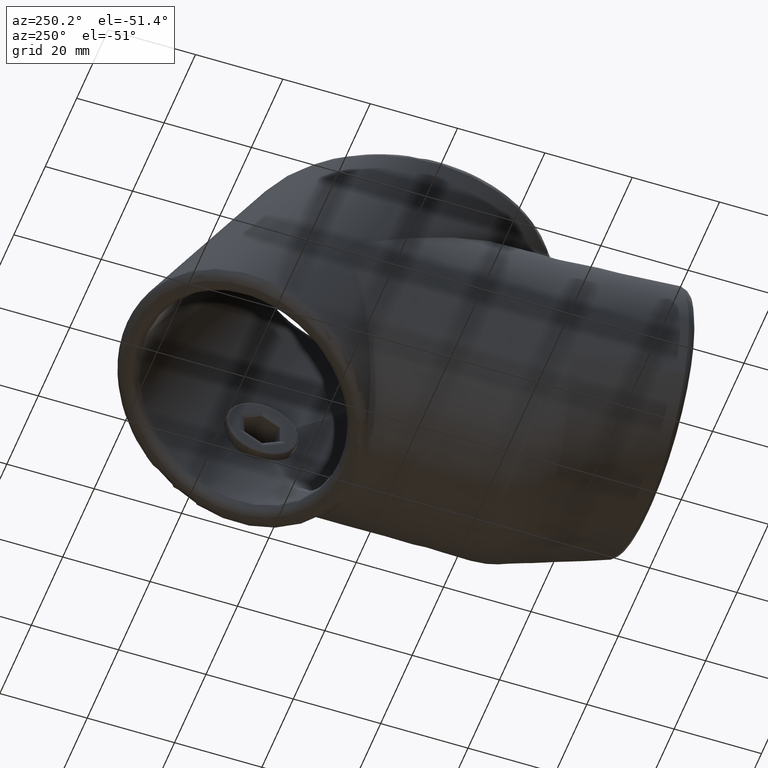
[diagram: clean part render]
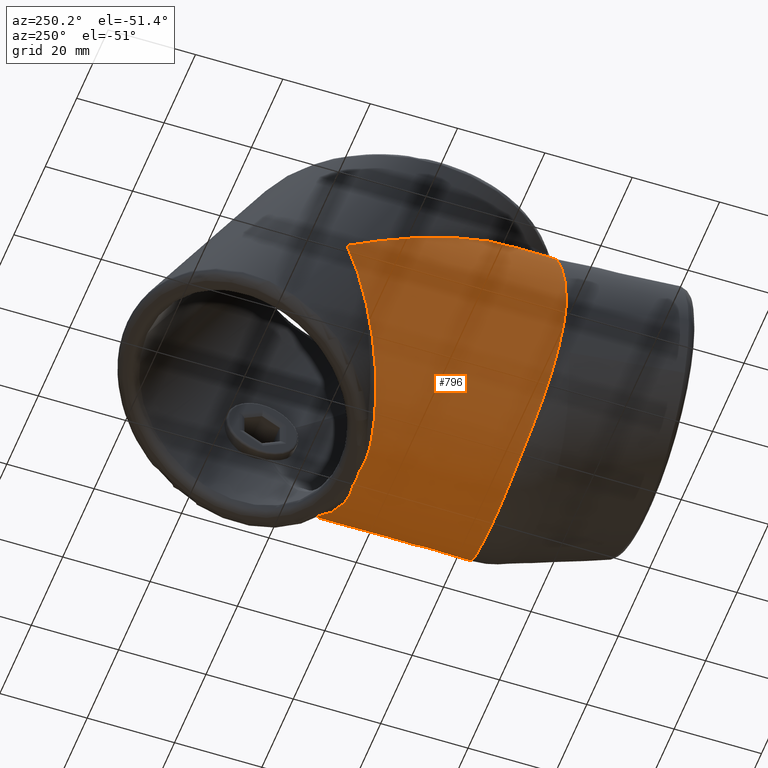
[diagram: same view with one face highlighted and labeled with its STEP entity id]
A machine part, auxiliary view. The second image highlights one B-rep face of the part: STEP entity #796.
In plain terms, the highlighted face is a freeform B-spline surface patch.
Its self-contained STEP definition (entity closure, byte-faithful):
#8 = CARTESIAN_POINT ( 'NONE',  ( 15.34324079109518202, 34.33308822748752220, -72.71142767412598573 ) ) ;
#23 = CARTESIAN_POINT ( 'NONE',  ( 23.11835137487732794, 71.32751469140193024, -64.48956764674439057 ) ) ;
#36 = CARTESIAN_POINT ( 'NONE',  ( -30.49999999999999645, 80.29829407782803230, -38.99999999999991473 ) ) ;
#42 = CARTESIAN_POINT ( 'NONE',  ( -14.38177128441660990, 34.67994219659301791, -73.41512767618057467 ) ) ;
#65 = CARTESIAN_POINT ( 'NONE',  ( -30.35150135555418416, 74.42045258168052158, -35.02951915703669528 ) ) ;
#71 = CARTESIAN_POINT ( 'NONE',  ( 27.18624448751720024, 31.56381914994669557, -56.71243366171285061 ) ) ;
#151 = CARTESIAN_POINT ( 'NONE',  ( -30.46607245975387812, 79.63318510851622989, -40.89931417567479599 ) ) ;
#207 = CARTESIAN_POINT ( 'NONE',  ( -18.74569666955641267, 33.34472307148504200, -8.230842904496528334 ) ) ;
#231 = CARTESIAN_POINT ( 'NONE',  ( -6.355951712743940440, 66.84393901102563973, -77.15022586506232471 ) ) ;
#252 = CARTESIAN_POINT ( 'NONE',  ( -17.62068581207156726, 34.21072568692139271, -70.85516706604704495 ) ) ;
#302 = CARTESIAN_POINT ( 'NONE',  ( -21.01996572045924694, 70.31113958827506849, -67.33876584266855048 ) ) ;
#371 = CARTESIAN_POINT ( 'NONE',  ( 21.07568773762016434, 36.28455482561115986, -10.76744767497418387 ) ) ;
#413 = CARTESIAN_POINT ( 'NONE',  ( 16.43253952202408286, 29.99999999999949907, -6.144381523154648583 ) ) ;
#430 = CARTESIAN_POINT ( 'NONE',  ( 28.40134676577688211, 58.14458449881214364, -24.73412878564369066 ) ) ;
#521 = CARTESIAN_POINT ( 'NONE',  ( 29.34158644979062558, 75.61086420178507694, -49.65020117165168045 ) ) ;
#579 = CARTESIAN_POINT ( 'NONE',  ( -28.89877643509914051, 31.21453789030521975, -51.47037471742468995 ) ) ;
#608 = CARTESIAN_POINT ( 'NONE',  ( 8.475076730495640476, 67.00784339776660659, -76.46411338398992541 ) ) ;
#654 = CARTESIAN_POINT ( 'NONE',  ( 9.530474007424711402, 35.02133354677126675, -76.14036169351686567 ) ) ;
#688 = CARTESIAN_POINT ( 'NONE',  ( 30.43077144308112736, 30.00000000000000000, -36.37381287215466585 ) ) ;
#718 = ORIENTED_EDGE ( 'NONE', *, *, #4768, .T. ) ;
#725 = CARTESIAN_POINT ( 'NONE',  ( 11.40861283193709141, 34.85394215115328365, -75.25651177649592682 ) ) ;
#756 = CARTESIAN_POINT ( 'NONE',  ( 23.42642469677804229, 32.63415847162329442, -64.07758351340189051 ) ) ;
#796 = ADVANCED_FACE ( 'NONE', ( #8778 ), #4693, .F. ) ;
#815 = CARTESIAN_POINT ( 'NONE',  ( -30.28324022711914054, 78.63889030593387020, -43.73812775652802998 ) ) ;
#816 = CARTESIAN_POINT ( 'NONE',  ( 0.6718708486149478354, 67.01535412653443302, -78.02854312478359589 ) ) ;
#834 = B_SPLINE_CURVE_WITH_KNOTS ( 'NONE', 3,
 ( #6806, #5990, #3362, #430, #2664, #4117, #2574, #8339, #8396, #1097, #9051, #7717, #371, #1943, #6179, #3331, #6991, #4086 ),
 .UNSPECIFIED., .F., .F.,
 ( 4, 2, 2, 2, 2, 2, 2, 2, 4 ),
 ( 6.938893903907228378E-18, 0.01250443665043140910, 0.01875665497564710932, 0.02500887330086281127, 0.03126109162607851322, 0.03751330995129421170, 0.04376552827650991712, 0.04689163743911776289, 0.05001774660172561560 ),
 .UNSPECIFIED. ) ;
#846 = CARTESIAN_POINT ( 'NONE',  ( -19.74407286660049365, 35.29386968613297171, -9.254358648280552657 ) ) ;
#860 = CARTESIAN_POINT ( 'NONE',  ( -30.46289620152457189, 77.35787832099934747, -37.01374970038066436 ) ) ;
#870 = CARTESIAN_POINT ( 'NONE',  ( -30.44573945828515349, 79.46720979736684853, -41.37325053270755149 ) ) ;
#873 = CARTESIAN_POINT ( 'NONE',  ( -17.20589746141421372, 30.04842368060844393, -6.798182514207849358 ) ) ;
#899 = CARTESIAN_POINT ( 'NONE',  ( -30.33957371102808764, 30.42160800081511240, -43.17453303989878322 ) ) ;
#916 = CARTESIAN_POINT ( 'NONE',  ( -25.17492010638357058, 32.49552537534891172, -61.12854723189547457 ) ) ;
#1026 = CARTESIAN_POINT ( 'NONE',  ( -17.65080797116912947, 69.05844709056270858, -70.82554108058255338 ) ) ;
#1048 = ORIENTED_EDGE ( 'NONE', *, *, #8918, .T. ) ;
#1097 = CARTESIAN_POINT ( 'NONE',  ( 24.02304510398938930, 42.83875204656919067, -14.93452346838602018 ) ) ;
#1141 = CARTESIAN_POINT ( 'NONE',  ( 37.49855832095252595, 80.60008384229502099, -78.00496083567232120 ) ) ;
#1164 = CARTESIAN_POINT ( 'NONE',  ( -30.49999999999999645, 80.29829407782803230, -38.99999999999991473 ) ) ;
#1251 = CARTESIAN_POINT ( 'NONE',  ( 30.41914972764452685, 68.66321903876631438, -41.96234985961158515 ) ) ;
#1268 = VERTEX_POINT ( 'NONE', #1470 ) ;
#1284 = CARTESIAN_POINT ( 'NONE',  ( 29.42289308310330753, 74.79395902488687398, -49.28364716559273262 ) ) ;
#1311 = CARTESIAN_POINT ( 'NONE',  ( -25.46712634632379846, 48.33713359090894812, -17.41024200543920486 ) ) ;
#1389 = CARTESIAN_POINT ( 'NONE',  ( 16.57247884951000216, 34.13538808935365410, -71.76335473795445807 ) ) ;
#1412 = VERTEX_POINT ( 'NONE', #7890 ) ;
#1457 = CARTESIAN_POINT ( 'NONE',  ( 30.50809379088184770, 30.09022766757948020, -38.46624486818963362 ) ) ;
#1469 = CARTESIAN_POINT ( 'NONE',  ( 16.78730325837431181, 68.78865295394646751, -71.57279161970323855 ) ) ;
#1470 = CARTESIAN_POINT ( 'NONE',  ( -17.26932881412431797, 30.00000000000000000, -6.853753139748971712 ) ) ;
#1482 = CARTESIAN_POINT ( 'NONE',  ( -30.49999999999999645, 79.56421410354572288, -38.50412911332108479 ) ) ;
#1490 = CARTESIAN_POINT ( 'NONE',  ( 17.35595228669390622, 33.99471958005462824, -71.09203844778882342 ) ) ;
#1515 = CARTESIAN_POINT ( 'NONE',  ( -30.26231343452380429, 72.95312297281871849, -34.03833827777643961 ) ) ;
#1522 = CARTESIAN_POINT ( 'NONE',  ( 26.37365242580247582, 31.80882961618174676, -58.61864606868514471 ) ) ;
#1545 = CARTESIAN_POINT ( 'NONE',  ( -30.44063504954216981, 76.62329110273878996, -36.51753617038097133 ) ) ;
#1554 = CARTESIAN_POINT ( 'NONE',  ( -24.29496251576408383, 71.99857799518311197, -62.60114017377559037 ) ) ;
#1555 = CARTESIAN_POINT ( 'NONE',  ( -24.35663476088555157, 45.54809617706074931, -15.52624774849091516 ) ) ;
#1569 = CARTESIAN_POINT ( 'NONE',  ( 7.425184638821599847, 66.89105895584928874, -76.83314624759661626 ) ) ;
#1580 = CARTESIAN_POINT ( 'NONE',  ( -23.34637126121948825, 43.01078501202162840, -13.81229452603202645 ) ) ;
#1611 = CARTESIAN_POINT ( 'NONE',  ( -28.21425552590767438, 75.05780443188072582, -53.94250434583531018 ) ) ;
#1613 = CARTESIAN_POINT ( 'NONE',  ( -20.38633209983108330, 36.58824241549639567, -9.971702150306292367 ) ) ;
#1614 = CARTESIAN_POINT ( 'NONE',  ( -28.89877643509914051, 31.21453789030521975, -51.47037471742468995 ) ) ;
#1642 = CARTESIAN_POINT ( 'NONE',  ( -24.35663476088555157, 45.54809617706074931, -15.52624774849091516 ) ) ;
#1643 = CARTESIAN_POINT ( 'NONE',  ( -30.42616433013681387, 30.32758556410372464, -41.96900945712096132 ) ) ;
#1672 = EDGE_CURVE ( 'NONE', #3348, #1412, #7423, .T. ) ;
#1718 = CARTESIAN_POINT ( 'NONE',  ( -26.10330348220848862, 32.21444979394116359, -59.28885516364169916 ) ) ;
#1766 = CARTESIAN_POINT ( 'NONE',  ( -30.46521232289778425, 30.00000000000000000, -37.13784022523075379 ) ) ;
#1768 = CARTESIAN_POINT ( 'NONE',  ( -15.37555571487924233, 68.38028113592736190, -72.70159117286127071 ) ) ;
#1854 = EDGE_CURVE ( 'NONE', #7499, #5336, #8149, .T. ) ;
#1880 = VERTEX_POINT ( 'NONE', #5174 ) ;
#1943 = CARTESIAN_POINT ( 'NONE',  ( 19.73051996035741595, 33.88649866006056754, -9.249829631769934224 ) ) ;
#1970 = CARTESIAN_POINT ( 'NONE',  ( 29.71035664282055322, 72.53712659901907500, -47.83886589134647238 ) ) ;
#2001 = B_SPLINE_CURVE_WITH_KNOTS ( 'NONE', 3,
 ( #7091, #8529, #7150, #2763, #8594, #9219, #7183, #4317, #9354, #3494 ),
 .UNSPECIFIED., .F., .F.,
 ( 4, 3, 3, 4 ),
 ( 0.000000000000000000, 3.778546791277428618E-06, 8.631849371553973669E-06, 1.158259949019392176E-05 ),
 .UNSPECIFIED. ) ;
#2092 = CARTESIAN_POINT ( 'NONE',  ( 29.79014084350600555, 30.00000000000000355, -24.23644473023943746 ) ) ;
#2110 = CARTESIAN_POINT ( 'NONE',  ( 27.74561006612569258, 74.51840122292985313, -55.47641044433043334 ) ) ;
#2135 = CARTESIAN_POINT ( 'NONE',  ( 0.3428699941519853800, 35.35614491278493432, -78.00330309355165070 ) ) ;
#2166 = CARTESIAN_POINT ( 'NONE',  ( 24.50513622723330798, 32.34275805463244069, -62.32413753985974836 ) ) ;
#2179 = CARTESIAN_POINT ( 'NONE',  ( 28.63526563428925797, 75.47953929368344461, -52.74449290573452487 ) ) ;
#2199 = CARTESIAN_POINT ( 'NONE',  ( 30.08340503615603367, 70.33140489556238606, -32.57610232036211073 ) ) ;
#2200 = CARTESIAN_POINT ( 'NONE',  ( -5.867445278118501584, 35.29088216447002679, -77.29447615613715072 ) ) ;
#2235 = CARTESIAN_POINT ( 'NONE',  ( -6.886884837356889832, 35.25565069430429332, -77.01528618185611208 ) ) ;
#2268 = CARTESIAN_POINT ( 'NONE',  ( 14.92447120613669576, 34.39677782131832373, -73.01761212365666154 ) ) ;
#2288 = CARTESIAN_POINT ( 'NONE',  ( 5.819123843901156334, 66.84291203074565146, -77.28999624906816734 ) ) ;
#2299 = CARTESIAN_POINT ( 'NONE',  ( -14.58246501919430216, 68.17267032389250403, -73.27382697720705096 ) ) ;
#2300 = CARTESIAN_POINT ( 'NONE',  ( -8.475076730495633370, 67.00784339776660659, -76.46411338398992541 ) ) ;
#2323 = CARTESIAN_POINT ( 'NONE',  ( -28.52656788089715789, 59.80821397883641311, -25.15895468478221275 ) ) ;
#2364 = CARTESIAN_POINT ( 'NONE',  ( -17.20767935298567863, 30.15188418225185174, -6.799744285992333381 ) ) ;
#2365 = CARTESIAN_POINT ( 'NONE',  ( -29.51359897000300236, 30.95471833535553685, -49.14078594689431867 ) ) ;
#2419 = CARTESIAN_POINT ( 'NONE',  ( -17.22011028438279823, 30.20087505135216333, -6.810605180218763266 ) ) ;
#2474 = CARTESIAN_POINT ( 'NONE',  ( -2.015612545886167783, 67.19600119353505363, -77.91474418860222784 ) ) ;
#2574 = CARTESIAN_POINT ( 'NONE',  ( 26.79042634847122528, 51.25925054386983248, -20.31649309055780961 ) ) ;
#2611 = CARTESIAN_POINT ( 'NONE',  ( -37.50486915940636834, 80.60008384229502099, -77.99503874690211092 ) ) ;
#2641 = CARTESIAN_POINT ( 'NONE',  ( -30.46521232289778425, 30.00000000000000000, -37.13784022523075379 ) ) ;
#2664 = CARTESIAN_POINT ( 'NONE',  ( 28.04497955674026244, 56.41270547081752795, -23.62180074236247762 ) ) ;
#2725 = CARTESIAN_POINT ( 'NONE',  ( 30.49640047448547620, 68.31439633764316000, -39.74817564679116089 ) ) ;
#2757 = CARTESIAN_POINT ( 'NONE',  ( 30.44588344993784901, 68.54339373095601218, -36.63693889333170262 ) ) ;
#2763 = CARTESIAN_POINT ( 'NONE',  ( 17.21095371951908248, 30.00148526541970995, -6.802605886462476548 ) ) ;
#2801 =( BOUNDED_CURVE ( )  B_SPLINE_CURVE ( 3, ( #7837, #8553, #2092, #3484 ),
 .UNSPECIFIED., .F., .T. ) 
 B_SPLINE_CURVE_WITH_KNOTS ( ( 4, 4 ),
 ( 0.5998057547719181093, 1.503407201217422662 ),
 .UNSPECIFIED. ) 
 CURVE ( )  GEOMETRIC_REPRESENTATION_ITEM ( )  RATIONAL_B_SPLINE_CURVE ( ( 1.000000000000000000, 0.9331082602275015958, 0.9331082602275015958, 1.000000000000000000 ) ) 
 REPRESENTATION_ITEM ( '' )  );
#2860 = CARTESIAN_POINT ( 'NONE',  ( -9.825213583618573665, 35.10259101968893702, -75.94321674437540537 ) ) ;
#2891 = CARTESIAN_POINT ( 'NONE',  ( -12.60563495807589263, 34.87114595913853066, -74.51890550595368268 ) ) ;
#2896 = VERTEX_POINT ( 'NONE', #2199 ) ;
#2926 = CARTESIAN_POINT ( 'NONE',  ( -13.05701348726612920, 34.82543223787444475, -74.25116984927950625 ) ) ;
#2939 = CARTESIAN_POINT ( 'NONE',  ( 11.25864815489106974, 67.43821468002209940, -75.29050396530911371 ) ) ;
#2959 = CARTESIAN_POINT ( 'NONE',  ( 2.015612545865658856, 67.19600119353839318, -77.91474418860394735 ) ) ;
#2966 = EDGE_CURVE ( 'NONE', #7552, #3756, #4171, .T. ) ;
#2976 = VERTEX_POINT ( 'NONE', #3865 ) ;
#2977 = B_SPLINE_CURVE_WITH_KNOTS ( 'NONE', 3,
 ( #688, #9315, #1457, #5831, #5069, #5035, #4409, #5099, #6500, #5860, #4345, #8621, #71, #1522, #6467, #2166, #756, #4383, #6591, #7307, #7211, #1490, #1389, #8, #2268, #4312, #7179, #725, #654, #7936, #3622, #2984, #7967, #4994, #7275, #5726, #2135, #5763, #7999, #5794, #6531, #2200, #2235, #7240, #2860, #3689, #9349, #2891, #2926, #42, #5378, #3153, #252, #8868, #8247, #3915, #4573, #916, #1718, #6844, #8934, #7509 ),
 .UNSPECIFIED., .F., .F.,
 ( 4, 2, 2, 2, 2, 2, 2, 2, 2, 2, 2, 2, 2, 2, 2, 2, 2, 2, 2, 2, 2, 2, 2, 2, 2, 2, 2, 2, 2, 2, 4 ),
 ( -0.0001903074267614068859, 0.002952433454108112625, 0.006095174334977631649, 0.009237915215847151973, 0.01238065609671667143, 0.01866613785845568779, 0.02180887873932519511, 0.02495161962019469895, 0.03123710138193372052, 0.03437984226280321048, 0.03752258314367269698, 0.04066532402454219736, 0.04223669446497693714, 0.04380806490541167691, 0.05009354666715064991, 0.05166491710758540357, 0.05323628754802015028, 0.05637902842888965760, 0.05795039886932441819, 0.05952176930975917879, 0.06266451019062868610, 0.06580725107149820730, 0.06894999195236772849, 0.07052136239280247521, 0.07209273283323722192, 0.07523547371410671536, 0.07837821459497622267, 0.08152095547584571611, 0.08780643723758468910, 0.09409191899932366210, 0.1003774007610626212 ),
 .UNSPECIFIED. ) ;
#2984 = CARTESIAN_POINT ( 'NONE',  ( 5.520429176416524086, 35.23780648620639511, -77.36155019669814692 ) ) ;
#3037 = CARTESIAN_POINT ( 'NONE',  ( -27.54908165488601313, 55.47092786665990616, -22.22911871861393607 ) ) ;
#3049 = CARTESIAN_POINT ( 'NONE',  ( -17.26932881412431797, 30.00000000000000000, -6.853753139748971712 ) ) ;
#3069 = CARTESIAN_POINT ( 'NONE',  ( -26.89964390692652074, 73.80902849759316098, -57.48628986729867307 ) ) ;
#3071 = CARTESIAN_POINT ( 'NONE',  ( -17.26034540053703381, 30.34229277859101614, -6.845838576552784716 ) ) ;
#3153 = CARTESIAN_POINT ( 'NONE',  ( -16.84578199117154185, 34.33723923956583945, -71.53441467485154703 ) ) ;
#3191 = CARTESIAN_POINT ( 'NONE',  ( -7.425184638824891437, 66.89105895584954453, -76.83314624759552203 ) ) ;
#3199 = CARTESIAN_POINT ( 'NONE',  ( -30.49019919554040570, 30.19702693878711486, -40.15857039442590803 ) ) ;
#3206 = EDGE_CURVE ( 'NONE', #2976, #4338, #2001, .T. ) ;
#3258 = EDGE_CURVE ( 'NONE', #4798, #7499, #7805, .T. ) ;
#3331 = CARTESIAN_POINT ( 'NONE',  ( 18.27207874449824132, 31.53183364809477496, -7.762979785000523769 ) ) ;
#3342 = CARTESIAN_POINT ( 'NONE',  ( -0.003155419226914769545, 29.99999999999949907, -77.99999979128722316 ) ) ;
#3348 = VERTEX_POINT ( 'NONE', #1555 ) ;
#3362 = CARTESIAN_POINT ( 'NONE',  ( 29.33796507554221122, 63.34634195690727410, -28.07768554745880252 ) ) ;
#3431 = VERTEX_POINT ( 'NONE', #2300 ) ;
#3484 = CARTESIAN_POINT ( 'NONE',  ( 30.43077144308112736, 30.00000000000000000, -36.37381287215466585 ) ) ;
#3490 = CARTESIAN_POINT ( 'NONE',  ( 30.39676759340159862, 68.77045708442136629, -35.76424283364755041 ) ) ;
#3494 = CARTESIAN_POINT ( 'NONE',  ( 17.21670542978827356, 30.00000000000000000, -6.807634140662052857 ) ) ;
#3558 = CARTESIAN_POINT ( 'NONE',  ( 30.28467309205377589, 69.30369409082649668, -43.64332708844729325 ) ) ;
#3578 = CARTESIAN_POINT ( 'NONE',  ( -17.26932881412431797, 30.00000000000000000, -6.853753139748971712 ) ) ;
#3622 = CARTESIAN_POINT ( 'NONE',  ( 6.533699405321014453, 35.19236828039848319, -77.10036686627621805 ) ) ;
#3689 = CARTESIAN_POINT ( 'NONE',  ( -11.23084239379937266, 34.99490528389264199, -75.26539499728967542 ) ) ;
#3746 = CARTESIAN_POINT ( 'NONE',  ( -30.50000000000000000, 80.13234407661531122, -39.47390403149641713 ) ) ;
#3756 = VERTEX_POINT ( 'NONE', #8322 ) ;
#3804 = CARTESIAN_POINT ( 'NONE',  ( -24.77880126184007281, 72.29597751398806338, -61.76289399885678932 ) ) ;
#3809 = CARTESIAN_POINT ( 'NONE',  ( -17.72856721711684358, 31.37541854704542388, -7.264105547819826647 ) ) ;
#3865 = CARTESIAN_POINT ( 'NONE',  ( 17.20863067837238702, 30.00366686935876359, -6.800575738699792261 ) ) ;
#3878 =( BOUNDED_CURVE ( )  B_SPLINE_CURVE ( 3, ( #2641, #4095, #7920, #3578 ),
 .UNSPECIFIED., .F., .T. ) 
 B_SPLINE_CURVE_WITH_KNOTS ( ( 4, 4 ),
 ( 4.760154828659711512, 5.681287841371403857 ),
 .UNSPECIFIED. ) 
 CURVE ( )  GEOMETRIC_REPRESENTATION_ITEM ( )  RATIONAL_B_SPLINE_CURVE ( ( 1.000000000000000000, 0.9305339028866008722, 0.9305339028866008722, 1.000000000000000000 ) ) 
 REPRESENTATION_ITEM ( '' )  );
#3915 = CARTESIAN_POINT ( 'NONE',  ( -21.85197307970487657, 33.37049524736368511, -66.30821837621601844 ) ) ;
#3918 = CARTESIAN_POINT ( 'NONE',  ( 8.475076730495640476, 67.00784339776660659, -76.46411338398992541 ) ) ;
#3935 = CARTESIAN_POINT ( 'NONE',  ( -30.49937672901958408, 30.07508630168668162, -38.34640751690440652 ) ) ;
#3960 = CARTESIAN_POINT ( 'NONE',  ( -12.11874570974456766, 67.59341596295730881, -74.86654740415947629 ) ) ;
#3975 = ORIENTED_EDGE ( 'NONE', *, *, #1672, .T. ) ;
#4064 = CARTESIAN_POINT ( 'NONE',  ( 16.43253952202408286, 80.60008384229503520, -6.144381523154648583 ) ) ;
#4086 = CARTESIAN_POINT ( 'NONE',  ( 17.20863067837238702, 30.00366686935876359, -6.800575738699792261 ) ) ;
#4095 = CARTESIAN_POINT ( 'NONE',  ( -30.00149116216744005, 30.00000000000000000, -24.73349177571944324 ) ) ;
#4117 = CARTESIAN_POINT ( 'NONE',  ( 27.23928202054874248, 52.96938810054737701, -21.41256696777181645 ) ) ;
#4171 = B_SPLINE_CURVE_WITH_KNOTS ( 'NONE', 3,
 ( #1614, #2365, #7397, #899, #1643, #3199, #9040, #3935, #5452, #1766 ),
 .UNSPECIFIED., .F., .F.,
 ( 4, 2, 2, 2, 4 ),
 ( 0.000000000000000000, 0.007248720442253451905, 0.01087308066338018783, 0.01268526077394355363, 0.01449744088450692289 ),
 .UNSPECIFIED. ) ;
#4179 = CARTESIAN_POINT ( 'NONE',  ( 29.27831426268075887, 76.46855425084228841, -49.92738768700646546 ) ) ;
#4215 = CARTESIAN_POINT ( 'NONE',  ( -2.015612545886167783, 67.19600119353505363, -77.91474418860222784 ) ) ;
#4236 = VERTEX_POINT ( 'NONE', #5913 ) ;
#4238 = CARTESIAN_POINT ( 'NONE',  ( 2.015612545865658856, 67.19600119353839318, -77.91474418860394735 ) ) ;
#4244 = CARTESIAN_POINT ( 'NONE',  ( 30.15990898911185525, 69.92749571243345486, -44.81987821682225359 ) ) ;
#4312 = CARTESIAN_POINT ( 'NONE',  ( 14.06788004363864353, 34.51903411264788701, -73.60929923482868276 ) ) ;
#4317 = CARTESIAN_POINT ( 'NONE',  ( 17.21521084535137547, 30.00005290408707737, -6.806327289080614129 ) ) ;
#4325 = CARTESIAN_POINT ( 'NONE',  ( 23.90812360006917459, 71.76236053427125228, -63.26684703576289337 ) ) ;
#4338 = VERTEX_POINT ( 'NONE', #6259 ) ;
#4345 = CARTESIAN_POINT ( 'NONE',  ( 28.56695584757830630, 31.12076047036097748, -52.82824617778661747 ) ) ;
#4360 = CARTESIAN_POINT ( 'NONE',  ( 18.44092189634561407, 69.32840156900364548, -70.07590305219916615 ) ) ;
#4373 = CARTESIAN_POINT ( 'NONE',  ( 7.954675034017104629, 66.93715116468581527, -76.65659817449304114 ) ) ;
#4383 = CARTESIAN_POINT ( 'NONE',  ( 21.59373947329802235, 33.08848232322014127, -66.56617786325004715 ) ) ;
#4404 = CARTESIAN_POINT ( 'NONE',  ( 2.015612545865658856, 67.19600119353839318, -77.91474418860394735 ) ) ;
#4409 = CARTESIAN_POINT ( 'NONE',  ( 30.18082942808046099, 30.44731671161703801, -44.72378155051870152 ) ) ;
#4431 = ORIENTED_EDGE ( 'NONE', *, *, #8151, .T. ) ;
#4462 = CARTESIAN_POINT ( 'NONE',  ( -27.89860158563536530, 56.91433319075659369, -23.20413874794152420 ) ) ;
#4472 = ORIENTED_EDGE ( 'NONE', *, *, #2966, .T. ) ;
#4498 = CARTESIAN_POINT ( 'NONE',  ( -30.49320347047801860, 79.96549455236100812, -39.95037683707067799 ) ) ;
#4524 = CARTESIAN_POINT ( 'NONE',  ( -4.201586857415174237, 66.89911962221987096, -77.65353902949478027 ) ) ;
#4527 = CARTESIAN_POINT ( 'NONE',  ( -22.73196392590154602, 71.13706935988221858, -65.02367384411688533 ) ) ;
#4552 = CARTESIAN_POINT ( 'NONE',  ( -5.819123843909545180, 66.84291203074565146, -77.28999624906604993 ) ) ;
#4558 = CARTESIAN_POINT ( 'NONE',  ( -17.20430691508858700, 30.07594075309711101, -6.796798146918729522 ) ) ;
#4573 = CARTESIAN_POINT ( 'NONE',  ( -23.04916302098404302, 33.07340801900972593, -64.63757770464265207 ) ) ;
#4693 =( BOUNDED_SURFACE ( )  B_SPLINE_SURFACE ( 3, 1, ( 
 ( #4064, #413 ),
 ( #6127, #6907 ),
 ( #1141, #6221 ),
 ( #6257, #3342 ),
 ( #2611, #7665 ),
 ( #8378, #4705 ),
 ( #7633, #7606 ) ),
 .UNSPECIFIED., .F., .F., .F. ) 
 B_SPLINE_SURFACE_WITH_KNOTS ( ( 4, 3, 4 ),
 ( 2, 2 ),
 ( 0.000000000000000000, 0.5000000000000000000, 1.000000000000000000 ),
 ( 0.000000000000000000, 1.000000000000000000 ),
 .UNSPECIFIED. ) 
 GEOMETRIC_REPRESENTATION_ITEM ( )  RATIONAL_B_SPLINE_SURFACE ( (
 ( 1.000000000000000000, 1.000000000000000000),
 ( 0.5204117538001094001, 0.5204117538001094001),
 ( 0.5204117538001094001, 0.5204117538001094001),
 ( 1.000000000000000000, 1.000000000000000000),
 ( 0.5204117538001094001, 0.5204117538001094001),
 ( 0.5204117538001094001, 0.5204117538001094001),
 ( 1.000000000000000000, 1.000000000000000000) ) ) 
 REPRESENTATION_ITEM ( '' )  SURFACE ( )  );
#4705 = CARTESIAN_POINT ( 'NONE',  ( -48.02478731664551503, 29.99999999999949907, -31.96740472371258335 ) ) ;
#4768 = EDGE_CURVE ( 'NONE', #5336, #1880, #4897, .T. ) ;
#4798 = VERTEX_POINT ( 'NONE', #5740 ) ;
#4841 = CARTESIAN_POINT ( 'NONE',  ( 30.32179255358315473, 69.12482143703353188, -43.23115494124824920 ) ) ;
#4897 = B_SPLINE_CURVE_WITH_KNOTS ( 'NONE', 3,
 ( #608, #6256, #2939, #6448, #5702, #1469, #9293, #4360, #8602, #8632, #8567, #23, #4325, #6543, #5775, #2110, #2179, #6415 ),
 .UNSPECIFIED., .F., .F.,
 ( 4, 2, 2, 2, 2, 2, 2, 2, 4 ),
 ( 0.000000000000000000, 0.004526285847510982951, 0.009052571695021965903, 0.01131571461877746258, 0.01357885754253295926, 0.01810514339004394221, 0.02263142923755492517, 0.02715771508506589077, 0.03621028678008784280 ),
 .UNSPECIFIED. ) ;
#4903 = CARTESIAN_POINT ( 'NONE',  ( 30.49108935147635080, 68.33827969845071948, -37.95893567260286261 ) ) ;
#4904 = ORIENTED_EDGE ( 'NONE', *, *, #7615, .T. ) ;
#4936 = CARTESIAN_POINT ( 'NONE',  ( 30.08340503615603367, 70.33140489556238606, -32.57610232036211073 ) ) ;
#4970 = CARTESIAN_POINT ( 'NONE',  ( -0.6718708486356077536, 67.01535412653537094, -78.02854312478299903 ) ) ;
#4994 = CARTESIAN_POINT ( 'NONE',  ( 3.474818125032268057, 35.30816269927753837, -77.76868666719109058 ) ) ;
#5035 = CARTESIAN_POINT ( 'NONE',  ( 30.29044139505932876, 30.37876488585461487, -43.68220578960512768 ) ) ;
#5069 = CARTESIAN_POINT ( 'NONE',  ( 30.44316417219815207, 30.25283662000988016, -41.59949086039807753 ) ) ;
#5099 = CARTESIAN_POINT ( 'NONE',  ( 29.89738346855896012, 30.59491804434346918, -46.78490369280299177 ) ) ;
#5148 = CARTESIAN_POINT ( 'NONE',  ( -30.49257895087590242, 78.82766567686465464, -38.00659078728637752 ) ) ;
#5174 = CARTESIAN_POINT ( 'NONE',  ( 29.27831426268075887, 76.46855425084228841, -49.92738768700646546 ) ) ;
#5210 = CARTESIAN_POINT ( 'NONE',  ( -29.62961110144459553, 76.98778390309800557, -48.44871575664441821 ) ) ;
#5243 = CARTESIAN_POINT ( 'NONE',  ( -17.40421769318234269, 30.69777574524401231, -6.972719335781706107 ) ) ;
#5271 = CARTESIAN_POINT ( 'NONE',  ( -3.113831772280545529, 67.01516153675628118, -77.82173808488998645 ) ) ;
#5275 = CARTESIAN_POINT ( 'NONE',  ( -22.22725878139016942, 40.45551355683628714, -12.20658173327062990 ) ) ;
#5326 = ORIENTED_EDGE ( 'NONE', *, *, #6611, .T. ) ;
#5336 = VERTEX_POINT ( 'NONE', #6278 ) ;
#5366 = CARTESIAN_POINT ( 'NONE',  ( -19.75819490673664447, 69.78926118034354431, -68.79530749953208613 ) ) ;
#5378 = CARTESIAN_POINT ( 'NONE',  ( -15.22631062616977893, 34.57185670600720329, -72.81437671495037023 ) ) ;
#5383 = B_SPLINE_CURVE_WITH_KNOTS ( 'NONE', 3,
 ( #8721, #8028, #3191, #231, #4552, #4524, #5271, #2474 ),
 .UNSPECIFIED., .F., .F.,
 ( 4, 2, 2, 4 ),
 ( 1.734723475976807094E-18, 0.001676206190522051441, 0.003352412381044101147, 0.006704824762088212702 ),
 .UNSPECIFIED. ) ;
#5452 = CARTESIAN_POINT ( 'NONE',  ( -30.48773719345784272, 30.03669598141831543, -37.74036402150000669 ) ) ;
#5581 = CARTESIAN_POINT ( 'NONE',  ( 29.86452549495703579, 71.56873679174231029, -46.92574622767271109 ) ) ;
#5597 = EDGE_CURVE ( 'NONE', #1880, #2896, #9241, .T. ) ;
#5687 = CARTESIAN_POINT ( 'NONE',  ( 30.46416005460680765, 68.46006214504640752, -41.09179634725865071 ) ) ;
#5702 = CARTESIAN_POINT ( 'NONE',  ( 15.04966327698131678, 68.28443584628277563, -72.96663897337779758 ) ) ;
#5726 = CARTESIAN_POINT ( 'NONE',  ( 0.8703788117949735614, 35.35162742040400730, -77.98986721176969183 ) ) ;
#5740 = CARTESIAN_POINT ( 'NONE',  ( -2.015612545886167783, 67.19600119353505363, -77.91474418860222784 ) ) ;
#5741 = EDGE_CURVE ( 'NONE', #4236, #7552, #2977, .T. ) ;
#5753 = CARTESIAN_POINT ( 'NONE',  ( -24.35663476088555157, 45.54809617706074931, -15.52624774849091516 ) ) ;
#5763 = CARTESIAN_POINT ( 'NONE',  ( -0.7061891016211213623, 35.36054599173250068, -77.99531338700813876 ) ) ;
#5775 = CARTESIAN_POINT ( 'NONE',  ( 26.00550344443681183, 73.12093915059897142, -59.43360185513071769 ) ) ;
#5794 = CARTESIAN_POINT ( 'NONE',  ( -2.789069800431530410, 35.35331718352143326, -77.85944771047175550 ) ) ;
#5823 = CARTESIAN_POINT ( 'NONE',  ( -29.54273364429298354, 65.62543226998725743, -29.08848456398923688 ) ) ;
#5831 = CARTESIAN_POINT ( 'NONE',  ( 30.48666436812635538, 30.19529395329202259, -40.55628799396627926 ) ) ;
#5860 = CARTESIAN_POINT ( 'NONE',  ( 29.10603312759519312, 30.92846114301000426, -50.84172939560654214 ) ) ;
#5882 = CARTESIAN_POINT ( 'NONE',  ( -26.38864016033674176, 51.17004902978380443, -19.32387586017367553 ) ) ;
#5909 = CARTESIAN_POINT ( 'NONE',  ( 4.201586857401647279, 66.89911962222076625, -77.65353902949735243 ) ) ;
#5913 = CARTESIAN_POINT ( 'NONE',  ( 30.43077144308112736, 30.00000000000000000, -36.37381287215466585 ) ) ;
#5951 = CARTESIAN_POINT ( 'NONE',  ( -28.75780317382806928, 75.69368267262868244, -52.13416365870534008 ) ) ;
#5990 = CARTESIAN_POINT ( 'NONE',  ( 29.78888922388265925, 66.83096170290525606, -30.32099856542296124 ) ) ;
#6011 = CARTESIAN_POINT ( 'NONE',  ( -18.40638418931125386, 32.69408739606127767, -7.897842275346780738 ) ) ;
#6107 = CARTESIAN_POINT ( 'NONE',  ( -16.90852737505026937, 68.82265486241240637, -71.47888463983289853 ) ) ;
#6127 = CARTESIAN_POINT ( 'NONE',  ( 48.02592427764328420, 80.60008384229502099, -31.98011112552507740 ) ) ;
#6179 = CARTESIAN_POINT ( 'NONE',  ( 19.25988281234266353, 33.09381411099577264, -8.748827606150015868 ) ) ;
#6221 = CARTESIAN_POINT ( 'NONE',  ( 37.49855832095252595, 29.99999999999949907, -78.00496083567232120 ) ) ;
#6256 = CARTESIAN_POINT ( 'NONE',  ( 9.906143653591406917, 67.20224191177270257, -75.93479417009805843 ) ) ;
#6257 = CARTESIAN_POINT ( 'NONE',  ( -0.003155419226914769545, 80.60008384229503520, -77.99999979128722316 ) ) ;
#6259 = CARTESIAN_POINT ( 'NONE',  ( 17.21670542978827356, 30.00000000000000000, -6.807634140662052857 ) ) ;
#6278 = CARTESIAN_POINT ( 'NONE',  ( 8.475076730495640476, 67.00784339776660659, -76.46411338398992541 ) ) ;
#6311 = CARTESIAN_POINT ( 'NONE',  ( 29.60865554089919982, 73.24618184094977380, -48.37143293623677920 ) ) ;
#6358 = EDGE_CURVE ( 'NONE', #3756, #1268, #3878, .T. ) ;
#6366 = ORIENTED_EDGE ( 'NONE', *, *, #8450, .T. ) ;
#6368 = CARTESIAN_POINT ( 'NONE',  ( 29.91635418174864469, 71.26106002602584510, -46.60106714853878174 ) ) ;
#6402 = CARTESIAN_POINT ( 'NONE',  ( 30.49842657313431715, 68.30536833160016386, -38.40299703361544204 ) ) ;
#6415 = CARTESIAN_POINT ( 'NONE',  ( 29.27831426268075887, 76.46855425084228841, -49.92738768700646546 ) ) ;
#6448 = CARTESIAN_POINT ( 'NONE',  ( 13.83051239346569972, 67.97925604135400590, -73.80657906354474562 ) ) ;
#6467 = CARTESIAN_POINT ( 'NONE',  ( 25.93006807885604559, 31.93861545031240823, -59.56364210739950238 ) ) ;
#6500 = CARTESIAN_POINT ( 'NONE',  ( 29.72355973921246886, 30.67404669082380764, -47.80612421924662669 ) ) ;
#6531 = CARTESIAN_POINT ( 'NONE',  ( -3.820843046897240747, 35.33950851401776561, -77.71545791863324837 ) ) ;
#6543 = CARTESIAN_POINT ( 'NONE',  ( 25.35726443229731331, 72.66256460856088495, -60.72901253290766022 ) ) ;
#6591 = CARTESIAN_POINT ( 'NONE',  ( 20.94639819387061763, 33.24268227946175358, -67.37250914200311058 ) ) ;
#6611 = EDGE_CURVE ( 'NONE', #1268, #3348, #7205, .T. ) ;
#6623 = CARTESIAN_POINT ( 'NONE',  ( -23.27223430986055774, 71.41964351806018385, -64.23006079831716875 ) ) ;
#6639 = CARTESIAN_POINT ( 'NONE',  ( -28.80526819755081291, 61.25948906883333933, -26.13929073951940296 ) ) ;
#6649 = ORIENTED_EDGE ( 'NONE', *, *, #5597, .T. ) ;
#6737 = ORIENTED_EDGE ( 'NONE', *, *, #1854, .T. ) ;
#6806 = CARTESIAN_POINT ( 'NONE',  ( 30.08340503615603367, 70.33140489556238606, -32.57610232036211073 ) ) ;
#6830 = CARTESIAN_POINT ( 'NONE',  ( -8.475076730495633370, 67.00784339776660659, -76.46411338398992541 ) ) ;
#6844 = CARTESIAN_POINT ( 'NONE',  ( -27.70534720065002787, 31.68445699412107075, -55.45267730872253509 ) ) ;
#6907 = CARTESIAN_POINT ( 'NONE',  ( 48.02592427764328420, 29.99999999999949907, -31.98011112552507740 ) ) ;
#6991 = CARTESIAN_POINT ( 'NONE',  ( 17.75436868773862997, 30.76147050391969628, -7.277458853532595917 ) ) ;
#7021 = CARTESIAN_POINT ( 'NONE',  ( 30.01790166248788339, 70.68329037202909149, -45.91556646763014271 ) ) ;
#7087 = CARTESIAN_POINT ( 'NONE',  ( 30.06696285345019959, 70.41678119284563309, -45.55924718318389921 ) ) ;
#7091 = CARTESIAN_POINT ( 'NONE',  ( 17.20863067837238702, 30.00366686935876359, -6.800575738699792261 ) ) ;
#7145 = CARTESIAN_POINT ( 'NONE',  ( 30.26488350344900624, 69.39776807150911964, -34.09564477905941260 ) ) ;
#7150 = CARTESIAN_POINT ( 'NONE',  ( 17.21009810349394797, 30.00202847567431874, -6.801858074068799276 ) ) ;
#7179 = CARTESIAN_POINT ( 'NONE',  ( 13.62925718039510947, 34.57768145316419606, -73.89521852860731599 ) ) ;
#7183 = CARTESIAN_POINT ( 'NONE',  ( 17.21447046752718890, 30.00017815478026151, -6.805680001388557443 ) ) ;
#7205 = B_SPLINE_CURVE_WITH_KNOTS ( 'NONE', 3,
 ( #3049, #8885, #8798, #873, #4558, #2364, #2419, #3071, #8152, #5243, #8776, #3809, #8092, #6011, #207, #846, #1613, #5275, #1580, #1642 ),
 .UNSPECIFIED., .F., .F.,
 ( 4, 2, 2, 2, 2, 2, 2, 2, 2, 4 ),
 ( 0.000000000000000000, 7.680599006550235428E-05, 0.0001536119801310047086, 0.0003072239602619989546, 0.0006144479205239973671, 0.001228895841048003841, 0.002457791682096009418, 0.004915583364192025774, 0.009831166728384060222, 0.01966233345676814126 ),
 .UNSPECIFIED. ) ;
#7211 = CARTESIAN_POINT ( 'NONE',  ( 18.85679685490294588, 33.70222036189431236, -69.67628969377553005 ) ) ;
#7240 = CARTESIAN_POINT ( 'NONE',  ( -8.863322616279111443, 35.16153880830664491, -76.33984720627969978 ) ) ;
#7275 = CARTESIAN_POINT ( 'NONE',  ( 2.439764955314427386, 35.33108193965860977, -77.89808514741490342 ) ) ;
#7295 = EDGE_LOOP ( 'NONE', ( #1048, #9146, #6737, #718, #6649, #4431, #8957, #4904, #7712, #4472, #8929, #5326, #3975, #6366 ) ) ;
#7307 = CARTESIAN_POINT ( 'NONE',  ( 19.57415262772688180, 33.55043098911993127, -68.93183121201397512 ) ) ;
#7339 = CARTESIAN_POINT ( 'NONE',  ( -10.36505229750817136, 67.26458082618836443, -75.76505426574702540 ) ) ;
#7397 = CARTESIAN_POINT ( 'NONE',  ( -29.94779024088309427, 30.72506770294273082, -46.77499694944522446 ) ) ;
#7423 = B_SPLINE_CURVE_WITH_KNOTS ( 'NONE', 3,
 ( #5753, #1311, #5882, #3037, #4462, #2323, #6639, #5823, #8051, #1515, #65, #1545, #860, #5148, #1482, #36 ),
 .UNSPECIFIED., .F., .F.,
 ( 4, 2, 2, 2, 2, 2, 2, 4 ),
 ( 0.02104258630725084830, 0.03167299697661555419, 0.03698820231129790193, 0.04230340764598025660, 0.05293381831534495208, 0.05824902365002730675, 0.06090662631736847021, 0.06356422898470963367 ),
 .UNSPECIFIED. ) ;
#7499 = VERTEX_POINT ( 'NONE', #4238 ) ;
#7509 = CARTESIAN_POINT ( 'NONE',  ( -28.89877643509914051, 31.21453789030521975, -51.47037471742468995 ) ) ;
#7552 = VERTEX_POINT ( 'NONE', #579 ) ;
#7606 = CARTESIAN_POINT ( 'NONE',  ( -16.42722259335425150, 29.99999999999949907, -6.140034555454247922 ) ) ;
#7615 = EDGE_CURVE ( 'NONE', #4338, #4236, #2801, .T. ) ;
#7633 = CARTESIAN_POINT ( 'NONE',  ( -16.42722259335425150, 80.60008384229503520, -6.140034555454247922 ) ) ;
#7665 = CARTESIAN_POINT ( 'NONE',  ( -37.50486915940636834, 29.99999999999949907, -77.99503874690211092 ) ) ;
#7712 = ORIENTED_EDGE ( 'NONE', *, *, #5741, .T. ) ;
#7717 = CARTESIAN_POINT ( 'NONE',  ( 21.88231231251630504, 37.90577161645706639, -11.79603373751844053 ) ) ;
#7779 = CARTESIAN_POINT ( 'NONE',  ( 30.50112003094202251, 68.29325826059988458, -39.29626886194532176 ) ) ;
#7805 = B_SPLINE_CURVE_WITH_KNOTS ( 'NONE', 3,
 ( #4215, #4970, #816, #2959 ),
 .UNSPECIFIED., .F., .F.,
 ( 4, 4 ),
 ( 3.651592916931178934E-16, 0.004031225091751460855 ),
 .UNSPECIFIED. ) ;
#7837 = CARTESIAN_POINT ( 'NONE',  ( 17.21670542978827356, 30.00000000000000000, -6.807634140662052857 ) ) ;
#7841 = CARTESIAN_POINT ( 'NONE',  ( 30.20379835270797386, 69.70472003529729932, -44.43682866949857413 ) ) ;
#7890 = CARTESIAN_POINT ( 'NONE',  ( -30.49999999999999645, 80.29829407782803230, -38.99999999999991473 ) ) ;
#7920 = CARTESIAN_POINT ( 'NONE',  ( -25.27449743598920406, 30.00000000000000000, -13.88520816060325558 ) ) ;
#7936 = CARTESIAN_POINT ( 'NONE',  ( 7.039128340082260848, 35.16648300979579034, -76.95282587327236001 ) ) ;
#7960 = CARTESIAN_POINT ( 'NONE',  ( 3.113831772263560449, 67.01516153675828491, -77.82173808489235967 ) ) ;
#7967 = CARTESIAN_POINT ( 'NONE',  ( 5.011071919317471313, 35.25745693681785298, -77.47571903926100845 ) ) ;
#7999 = CARTESIAN_POINT ( 'NONE',  ( -1.228523373164838173, 35.36045436204653214, -77.97404472315184876 ) ) ;
#8028 = CARTESIAN_POINT ( 'NONE',  ( -7.954675034018716673, 66.93715116468604265, -76.65659817449241586 ) ) ;
#8051 = CARTESIAN_POINT ( 'NONE',  ( -29.90351309651040879, 68.55490249799521507, -31.06734116091561404 ) ) ;
#8061 = CARTESIAN_POINT ( 'NONE',  ( -30.36445327861583721, 78.96980311728552238, -42.79345736425517543 ) ) ;
#8092 = CARTESIAN_POINT ( 'NONE',  ( -17.89828633225284449, 31.70637032040150771, -7.420132943192397690 ) ) ;
#8111 = B_SPLINE_CURVE_WITH_KNOTS ( 'NONE', 3,
 ( #1164, #3746, #4498, #151, #870, #8061, #815, #8775, #5210, #5951, #1611, #3069, #8124, #3804, #1554, #6623, #4527, #302, #5366, #1026, #6107, #1768, #2299, #3960, #7339, #6830 ),
 .UNSPECIFIED., .F., .F.,
 ( 4, 2, 2, 2, 2, 2, 2, 2, 2, 2, 2, 2, 4 ),
 ( -4.913311592701316587E-05, 0.001457226558520839221, 0.002963586232968691905, 0.005976305581864410285, 0.01200174427965584531, 0.01802718297744727513, 0.02405262167523870495, 0.02706534102413443027, 0.03007806037303015906, 0.03610349907082165133, 0.03911621841971739399, 0.04212893776861312278, 0.04815437646640458036 ),
 .UNSPECIFIED. ) ;
#8124 = CARTESIAN_POINT ( 'NONE',  ( -26.12885027390746373, 73.19610057350236332, -59.22182028701132595 ) ) ;
#8149 = B_SPLINE_CURVE_WITH_KNOTS ( 'NONE', 3,
 ( #4404, #7960, #5909, #2288, #8679, #1569, #4373, #3918 ),
 .UNSPECIFIED., .F., .F.,
 ( 4, 2, 2, 4 ),
 ( 0.002015403820565188093, 0.005362526398680114367, 0.007036087687737575119, 0.008709648976795037606 ),
 .UNSPECIFIED. ) ;
#8151 = EDGE_CURVE ( 'NONE', #2896, #2976, #834, .T. ) ;
#8152 = CARTESIAN_POINT ( 'NONE',  ( -17.29524030441550053, 30.43207660054757824, -6.876488422264976030 ) ) ;
#8247 = CARTESIAN_POINT ( 'NONE',  ( -19.81704143178636457, 33.80351453004580264, -68.66926069370093444 ) ) ;
#8322 = CARTESIAN_POINT ( 'NONE',  ( -30.46521232289778425, 30.00000000000000000, -37.13784022523075379 ) ) ;
#8339 = CARTESIAN_POINT ( 'NONE',  ( 25.79101587650517047, 47.86430352185649184, -18.14344859282678257 ) ) ;
#8378 = CARTESIAN_POINT ( 'NONE',  ( -48.02478731664551503, 80.60008384229502099, -31.96740472371258335 ) ) ;
#8396 = CARTESIAN_POINT ( 'NONE',  ( 25.24054254579253964, 46.17947280553148914, -17.06646417553515960 ) ) ;
#8450 = EDGE_CURVE ( 'NONE', #1412, #3431, #8111, .T. ) ;
#8523 = CARTESIAN_POINT ( 'NONE',  ( 30.36696259039008794, 68.90972585675632445, -35.33759865073940887 ) ) ;
#8529 = CARTESIAN_POINT ( 'NONE',  ( 17.20929550357876181, 30.00276859903325288, -6.801156683969844075 ) ) ;
#8553 = CARTESIAN_POINT ( 'NONE',  ( 25.06969320948229907, 30.00000000000000355, -13.67454818496304547 ) ) ;
#8567 = CARTESIAN_POINT ( 'NONE',  ( 21.40053575935895225, 70.49113771092822844, -66.83448340715968072 ) ) ;
#8594 = CARTESIAN_POINT ( 'NONE',  ( 17.21205204318743043, 30.00078796585775720, -6.803565826467490751 ) ) ;
#8602 = CARTESIAN_POINT ( 'NONE',  ( 18.96346268811535651, 69.51513282599658794, -69.55674950609035534 ) ) ;
#8621 = CARTESIAN_POINT ( 'NONE',  ( 27.55674148176577276, 31.44817551886504248, -55.74882048680160551 ) ) ;
#8632 = CARTESIAN_POINT ( 'NONE',  ( 20.47244125736528630, 70.08947029198428424, -67.95705178637690835 ) ) ;
#8679 = CARTESIAN_POINT ( 'NONE',  ( 6.355951712737264891, 66.84393901102546920, -77.15022586506415792 ) ) ;
#8721 = CARTESIAN_POINT ( 'NONE',  ( -8.475076730495633370, 67.00784339776660659, -76.46411338398992541 ) ) ;
#8775 = CARTESIAN_POINT ( 'NONE',  ( -29.95768525133621552, 77.64810106496531716, -46.56561772731917870 ) ) ;
#8776 = CARTESIAN_POINT ( 'NONE',  ( -17.48433457500979671, 30.86827705903667862, -7.044093472519327825 ) ) ;
#8778 = FACE_OUTER_BOUND ( 'NONE', #7295, .T. ) ;
#8798 = CARTESIAN_POINT ( 'NONE',  ( -17.22936757279970266, 30.00716089007614684, -6.818707183238749359 ) ) ;
#8868 = CARTESIAN_POINT ( 'NONE',  ( -19.10583520969717242, 33.94395793799171912, -69.42316887280759374 ) ) ;
#8885 = CARTESIAN_POINT ( 'NONE',  ( -17.24997609748226779, 29.99999999999943867, -6.836754402679475540 ) ) ;
#8918 = EDGE_CURVE ( 'NONE', #3431, #4798, #5383, .T. ) ;
#8929 = ORIENTED_EDGE ( 'NONE', *, *, #6358, .T. ) ;
#8934 = CARTESIAN_POINT ( 'NONE',  ( -28.36711095719162756, 31.43921587461763423, -53.48487785727078858 ) ) ;
#8957 = ORIENTED_EDGE ( 'NONE', *, *, #3206, .T. ) ;
#9040 = CARTESIAN_POINT ( 'NONE',  ( -30.50057428786100644, 30.15525217349191323, -39.55474449931767822 ) ) ;
#9051 = CARTESIAN_POINT ( 'NONE',  ( 23.35618977783490990, 41.18281757322675674, -13.87953922754648772 ) ) ;
#9146 = ORIENTED_EDGE ( 'NONE', *, *, #3258, .T. ) ;
#9219 = CARTESIAN_POINT ( 'NONE',  ( 17.21326301647953017, 30.00038242086679574, -6.804624367121315132 ) ) ;
#9241 = B_SPLINE_CURVE_WITH_KNOTS ( 'NONE', 3,
 ( #4179, #521, #1284, #6311, #1970, #5581, #6368, #7021, #7087, #4244, #7841, #3558, #4841, #1251, #5687, #2725, #7779, #6402, #4903, #9278, #2757, #3490, #8523, #7145, #9245, #4936 ),
 .UNSPECIFIED., .F., .F.,
 ( 4, 2, 2, 2, 2, 2, 2, 2, 2, 2, 2, 2, 4 ),
 ( 0.000000000000000000, 0.002694663369145183958, 0.005389326738290367916, 0.006736658422862959461, 0.008083990107435552741, 0.009431321792008144286, 0.01077865347658073583, 0.01347331684572593974, 0.01482064853029854343, 0.01616798021487114712, 0.01751531189944375080, 0.01886264358401635449, 0.02155730695316158269 ),
 .UNSPECIFIED. ) ;
#9245 = CARTESIAN_POINT ( 'NONE',  ( 30.17966449810334950, 69.81706297580227272, -33.31315977208330281 ) ) ;
#9278 = CARTESIAN_POINT ( 'NONE',  ( 30.46481830616595943, 68.45729438863040173, -37.07590677406852109 ) ) ;
#9293 = CARTESIAN_POINT ( 'NONE',  ( 17.35337368283640203, 68.96526139125195698, -71.08365304959397690 ) ) ;
#9315 = CARTESIAN_POINT ( 'NONE',  ( 30.48594123334504147, 30.04299201163510347, -37.41905755877579765 ) ) ;
#9349 = CARTESIAN_POINT ( 'NONE',  ( -11.69317065873408978, 34.95581041859180971, -75.02560912007604088 ) ) ;
#9354 = CARTESIAN_POINT ( 'NONE',  ( 17.21595913298794045, 30.00000000000065015, -6.806981553885757208 ) ) ;